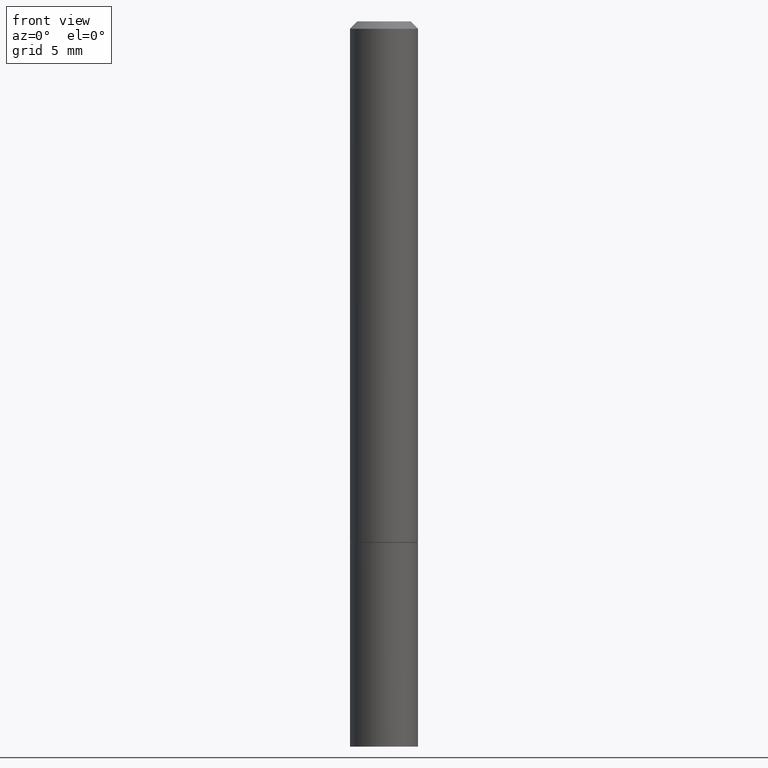
[diagram: clean part render]
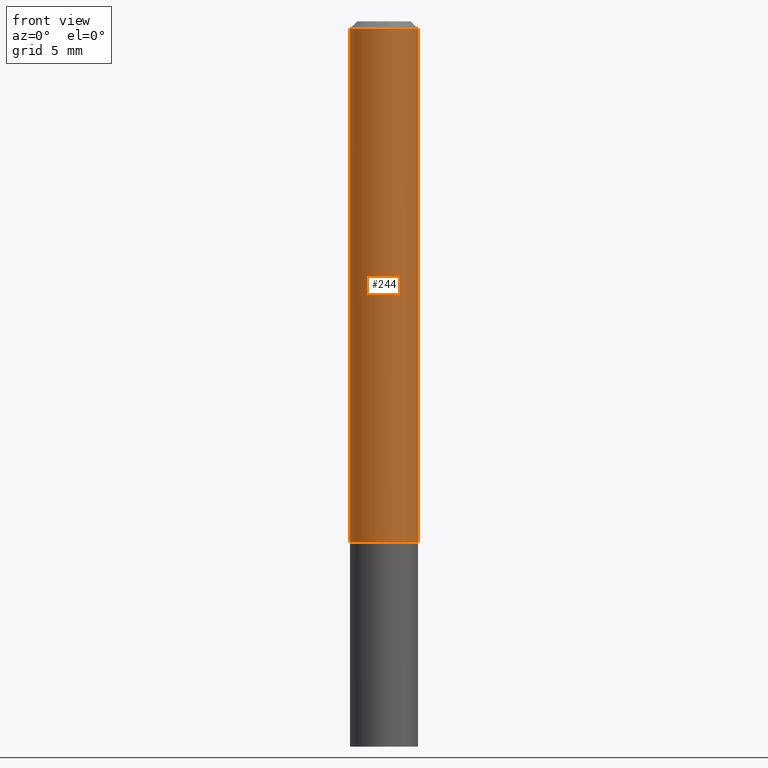
[diagram: same view with one face highlighted and labeled with its STEP entity id]
A machine part, front view. The second image highlights one B-rep face of the part: STEP entity #244.
In plain terms, the highlighted cylindrical surface (edge-blend (fillet) strip) has radius 2.3812 mm, axis along (-0, 0, 1).
Its self-contained STEP definition (entity closure, byte-faithful):
#28 = CARTESIAN_POINT ( 'NONE',  ( 0.09374999999999991673, -6.546527510330869125E-16, 4.571415727308685602E-30 ) ) ;
#29 = ORIENTED_EDGE ( 'NONE', *, *, #49, .T. ) ;
#36 = VERTEX_POINT ( 'NONE', #231 ) ;
#37 = AXIS2_PLACEMENT_3D ( 'NONE', #131, #60, #346 ) ;
#49 = EDGE_CURVE ( 'NONE', #173, #137, #169, .T. ) ;
#57 = VECTOR ( 'NONE', #90, 39.37007874015748143 ) ;
#60 = DIRECTION ( 'NONE',  ( -2.445468806185136597E-29, 3.491481338843145583E-15, 1.000000000000000000 ) ) ;
#70 = ORIENTED_EDGE ( 'NONE', *, *, #220, .F. ) ;
#78 = DIRECTION ( 'NONE',  ( -2.445468806185136877E-29, 3.491481338843145188E-15, 1.000000000000000000 ) ) ;
#80 = FACE_OUTER_BOUND ( 'NONE', #246, .T. ) ;
#87 = ORIENTED_EDGE ( 'NONE', *, *, #198, .F. ) ;
#90 = DIRECTION ( 'NONE',  ( -2.445468806185136877E-29, 3.491481338843145188E-15, 1.000000000000000000 ) ) ;
#109 = DIRECTION ( 'NONE',  ( -2.445468806185136597E-29, 3.491481338843145583E-15, 1.000000000000000000 ) ) ;
#113 = DIRECTION ( 'NONE',  ( 1.000000000000000000, -6.982962677686266711E-15, 4.876176775795935793E-29 ) ) ;
#118 = VECTOR ( 'NONE', #78, 39.37007874015748143 ) ;
#131 = CARTESIAN_POINT ( 'NONE',  ( 3.512915940084948255E-29, -5.015512943248178546E-15, -1.436499999999999888 ) ) ;
#137 = VERTEX_POINT ( 'NONE', #247 ) ;
#141 = AXIS2_PLACEMENT_3D ( 'NONE', #162, #300, #113 ) ;
#159 = CIRCLE ( 'NONE', #37, 0.09375000000000001388 ) ;
#161 = VERTEX_POINT ( 'NONE', #235 ) ;
#162 = CARTESIAN_POINT ( 'NONE',  ( 0.000000000000000000, 0.000000000000000000, 0.000000000000000000 ) ) ;
#169 = LINE ( 'NONE', #28, #57 ) ;
#173 = VERTEX_POINT ( 'NONE', #366 ) ;
#178 = LINE ( 'NONE', #353, #118 ) ;
#190 = CYLINDRICAL_SURFACE ( 'NONE', #141, 0.09374999999999991673 ) ;
#198 = EDGE_CURVE ( 'NONE', #161, #36, #178, .T. ) ;
#217 = DIRECTION ( 'NONE',  ( 1.000000000000000000, -6.982962677686267499E-15, 0.000000000000000000 ) ) ;
#220 = EDGE_CURVE ( 'NONE', #36, #137, #228, .T. ) ;
#228 = CIRCLE ( 'NONE', #331, 0.09374999999999983347 ) ;
#231 = CARTESIAN_POINT ( 'NONE',  ( -0.09374999999999983347, 5.848231242562234171E-16, -0.02000000000000000736 ) ) ;
#235 = CARTESIAN_POINT ( 'NONE',  ( -0.09375000000000001388, -1.876537470237424631E-15, -1.436499999999999888 ) ) ;
#243 = CARTESIAN_POINT ( 'NONE',  ( 4.890937612370274910E-31, -6.982962677686295307E-17, -0.02000000000000000736 ) ) ;
#244 = ADVANCED_FACE ( 'NONE', ( #80 ), #190, .T. ) ;
#246 = EDGE_LOOP ( 'NONE', ( #87, #252, #29, #70 ) ) ;
#247 = CARTESIAN_POINT ( 'NONE',  ( 0.09374999999999983347, -7.130013140679429031E-16, -0.02000000000000000736 ) ) ;
#252 = ORIENTED_EDGE ( 'NONE', *, *, #320, .T. ) ;
#300 = DIRECTION ( 'NONE',  ( -2.445468806185136597E-29, 3.491481338843145583E-15, 1.000000000000000000 ) ) ;
#320 = EDGE_CURVE ( 'NONE', #161, #173, #159, .T. ) ;
#331 = AXIS2_PLACEMENT_3D ( 'NONE', #243, #109, #217 ) ;
#346 = DIRECTION ( 'NONE',  ( 1.000000000000000000, -6.982962677686261189E-15, 0.000000000000000000 ) ) ;
#353 = CARTESIAN_POINT ( 'NONE',  ( -0.09374999999999991673, 6.661338147750933326E-16, -4.611501647113969791E-30 ) ) ;
#366 = CARTESIAN_POINT ( 'NONE',  ( 0.09375000000000001388, -5.670165694281265261E-15, -1.436499999999999888 ) ) ;